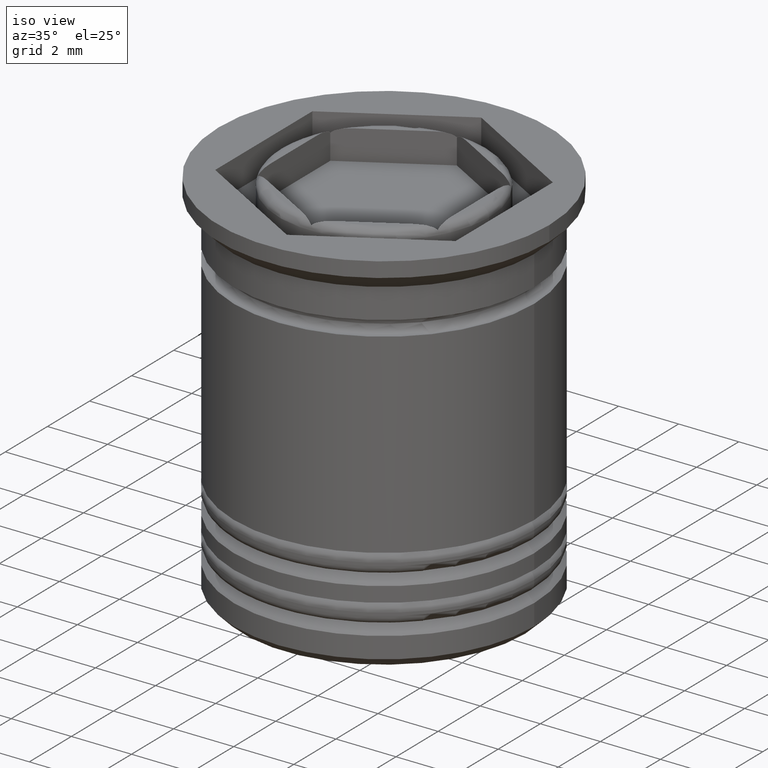
[diagram: clean part render]
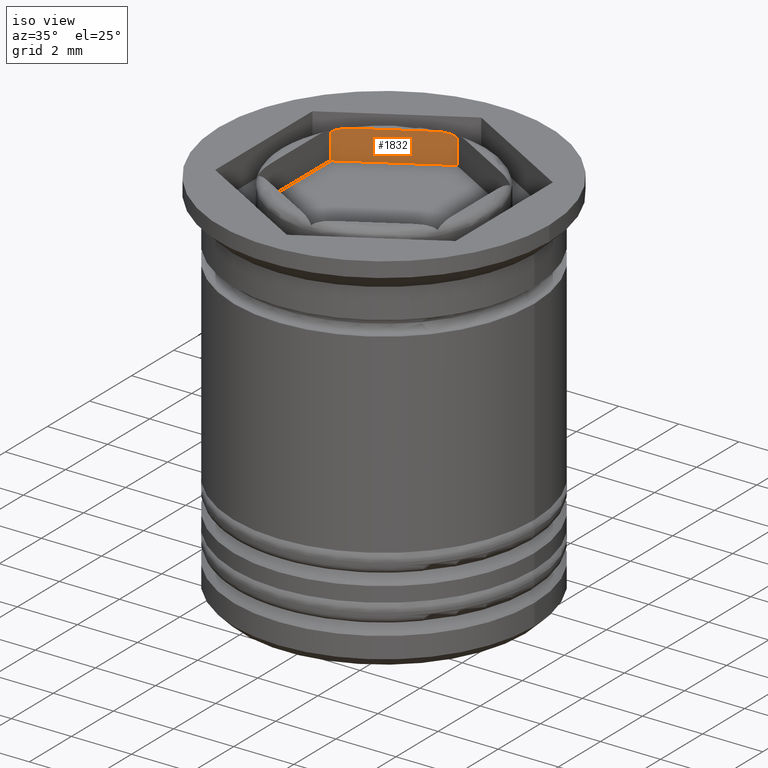
[diagram: same view with one face highlighted and labeled with its STEP entity id]
A machine part, iso view. The second image highlights one B-rep face of the part: STEP entity #1832.
In plain terms, the highlighted planar face has unit normal (-0.5, 0.866, 0).
Its self-contained STEP definition (entity closure, byte-faithful):
#36 = CARTESIAN_POINT ( 'NONE',  ( -0.4414355163307774332, 3.209238700954318624, 8.506328372801310169E-16 ) ) ;
#48 = EDGE_CURVE ( 'NONE', #1026, #1759, #473, .T. ) ;
#71 = DIRECTION ( 'NONE',  ( -0.000000000000000000, -0.000000000000000000, 1.000000000000000000 ) ) ;
#95 = LINE ( 'NONE', #414, #497 ) ;
#146 = CARTESIAN_POINT ( 'NONE',  ( -2.652575849777251804, 1.932636234222957494, -0.006590008935844869110 ) ) ;
#147 = ORIENTED_EDGE ( 'NONE', *, *, #1117, .F. ) ;
#229 = DIRECTION ( 'NONE',  ( -0.8660254037844387076, -0.4999999999999999445, 0.000000000000000000 ) ) ;
#305 = FACE_OUTER_BOUND ( 'NONE', #2072, .T. ) ;
#313 = B_SPLINE_CURVE_WITH_KNOTS ( 'NONE', 3,
 ( #1344, #724, #1229, #1678, #1043, #1967, #36, #1208 ),
 .UNSPECIFIED., .F., .F.,
 ( 4, 2, 2, 4 ),
 ( 2.825623115728058530E-19, 0.0001622701831771341629, 0.0003245403663542680548, 0.0006490807327085364349 ),
 .UNSPECIFIED. ) ;
#325 = VECTOR ( 'NONE', #229, 1000.000000000000000 ) ;
#334 = CARTESIAN_POINT ( 'NONE',  ( -3.000000000000000000, 1.732050807568877859, -0.1576963216159549264 ) ) ;
#337 = EDGE_CURVE ( 'NONE', #1023, #1026, #1207, .T. ) ;
#366 = DIRECTION ( 'NONE',  ( -0.4999999999999999445, 0.8660254037844387076, 0.000000000000000000 ) ) ;
#414 = CARTESIAN_POINT ( 'NONE',  ( -3.000000000000000000, 1.732050807568877859, -10.16515138991168321 ) ) ;
#473 = B_SPLINE_CURVE_WITH_KNOTS ( 'NONE', 3,
 ( #2032, #1253, #146, #782, #644, #2056, #617, #2079 ),
 .UNSPECIFIED., .F., .F.,
 ( 4, 2, 2, 4 ),
 ( 1.693691732042781777E-20, 0.0003251077594065942926, 0.0004876616391098914389, 0.0006502155188131885852 ),
 .UNSPECIFIED. ) ;
#497 = VECTOR ( 'NONE', #71, 1000.000000000000000 ) ;
#507 = CARTESIAN_POINT ( 'NONE',  ( -2.464365076099295671, 2.041299775070314126, 0.000000000000000000 ) ) ;
#555 = VERTEX_POINT ( 'NONE', #1490 ) ;
#587 = LINE ( 'NONE', #907, #1843 ) ;
#617 = CARTESIAN_POINT ( 'NONE',  ( -2.965112866681730797, 1.752192903381435851, -0.1203145750809058168 ) ) ;
#627 = VERTEX_POINT ( 'NONE', #1849 ) ;
#644 = CARTESIAN_POINT ( 'NONE',  ( -2.836116908067597198, 1.826668754811678452, -0.05305027761685764814 ) ) ;
#717 = EDGE_CURVE ( 'NONE', #555, #627, #587, .T. ) ;
#724 = CARTESIAN_POINT ( 'NONE',  ( -0.03499328590478502365, 3.443898232100797596, -0.1202008320270840092 ) ) ;
#782 = CARTESIAN_POINT ( 'NONE',  ( -2.790961897719603346, 1.852739012191353840, -0.03872414846243798364 ) ) ;
#826 = ORIENTED_EDGE ( 'NONE', *, *, #1450, .T. ) ;
#839 = VECTOR ( 'NONE', #1947, 999.9999999999998863 ) ;
#883 = AXIS2_PLACEMENT_3D ( 'NONE', #1224, #366, #1550 ) ;
#907 = CARTESIAN_POINT ( 'NONE',  ( -2.168404344971008868E-16, 3.464101615137754830, -10.16515138991168321 ) ) ;
#952 = PLANE ( 'NONE',  #883 ) ;
#1009 = CARTESIAN_POINT ( 'NONE',  ( -0.5356349239007045515, 3.154852647636318785, 0.000000000000000000 ) ) ;
#1023 = VERTEX_POINT ( 'NONE', #1009 ) ;
#1026 = VERTEX_POINT ( 'NONE', #507 ) ;
#1043 = CARTESIAN_POINT ( 'NONE',  ( -0.2090904032211537422, 3.343383214553053762, -0.03872241999869841661 ) ) ;
#1055 = ORIENTED_EDGE ( 'NONE', *, *, #337, .T. ) ;
#1117 = EDGE_CURVE ( 'NONE', #1806, #1759, #95, .T. ) ;
#1121 = ORIENTED_EDGE ( 'NONE', *, *, #717, .T. ) ;
#1130 = LINE ( 'NONE', #1311, #839 ) ;
#1194 = CARTESIAN_POINT ( 'NONE',  ( -2.168404344971008868E-16, 3.464101615137754830, 0.000000000000000000 ) ) ;
#1207 = LINE ( 'NONE', #1194, #325 ) ;
#1208 = CARTESIAN_POINT ( 'NONE',  ( -0.5356349239007045515, 3.154852647636318785, 0.000000000000000000 ) ) ;
#1224 = CARTESIAN_POINT ( 'NONE',  ( -2.168404344971008868E-16, 3.464101615137754830, -10.16515138991168321 ) ) ;
#1229 = CARTESIAN_POINT ( 'NONE',  ( -0.07639347113135709633, 3.419995824015736208, -0.09422876642215748111 ) ) ;
#1233 = DIRECTION ( 'NONE',  ( -0.000000000000000000, -0.000000000000000000, 1.000000000000000000 ) ) ;
#1253 = CARTESIAN_POINT ( 'NONE',  ( -2.558504986048359964, 1.986948072719734837, -1.905824131322174993E-18 ) ) ;
#1311 = CARTESIAN_POINT ( 'NONE',  ( -2.168404344971008868E-16, 3.464101615137754830, -1.000000000000000888 ) ) ;
#1344 = CARTESIAN_POINT ( 'NONE',  ( -2.168404344971008868E-16, 3.464101615137754830, -0.1576963216159549264 ) ) ;
#1378 = EDGE_CURVE ( 'NONE', #1806, #555, #1130, .T. ) ;
#1450 = EDGE_CURVE ( 'NONE', #627, #1023, #313, .T. ) ;
#1490 = CARTESIAN_POINT ( 'NONE',  ( -2.168404344971008868E-16, 3.464101615137754830, -1.000000000000000888 ) ) ;
#1513 = ORIENTED_EDGE ( 'NONE', *, *, #1378, .T. ) ;
#1550 = DIRECTION ( 'NONE',  ( -0.8660254037844385966, -0.4999999999999998890, 0.000000000000000000 ) ) ;
#1678 = CARTESIAN_POINT ( 'NONE',  ( -0.1639584821700014183, 3.369440141320983351, -0.05299204151133352775 ) ) ;
#1759 = VERTEX_POINT ( 'NONE', #334 ) ;
#1806 = VERTEX_POINT ( 'NONE', #2084 ) ;
#1832 = ADVANCED_FACE ( 'NONE', ( #305 ), #952, .F. ) ;
#1843 = VECTOR ( 'NONE', #1233, 1000.000000000000000 ) ;
#1849 = CARTESIAN_POINT ( 'NONE',  ( -2.168404344971008868E-16, 3.464101615137754830, -0.1576963216159549264 ) ) ;
#1947 = DIRECTION ( 'NONE',  ( 0.8660254037844387076, 0.4999999999999999445, -0.000000000000000000 ) ) ;
#1967 = CARTESIAN_POINT ( 'NONE',  ( -0.3467826759321240293, 3.263886543838044663, -0.006718191919573663837 ) ) ;
#1988 = ORIENTED_EDGE ( 'NONE', *, *, #48, .T. ) ;
#2032 = CARTESIAN_POINT ( 'NONE',  ( -2.464365076099295671, 2.041299775070314126, 0.000000000000000000 ) ) ;
#2056 = CARTESIAN_POINT ( 'NONE',  ( -2.923120587309835372, 1.776437157180684512, -0.09397729767315254890 ) ) ;
#2072 = EDGE_LOOP ( 'NONE', ( #1121, #826, #1055, #1988, #147, #1513 ) ) ;
#2079 = CARTESIAN_POINT ( 'NONE',  ( -3.000000000000000000, 1.732050807568877859, -0.1576963216159549264 ) ) ;
#2084 = CARTESIAN_POINT ( 'NONE',  ( -3.000000000000000000, 1.732050807568877859, -1.000000000000000888 ) ) ;